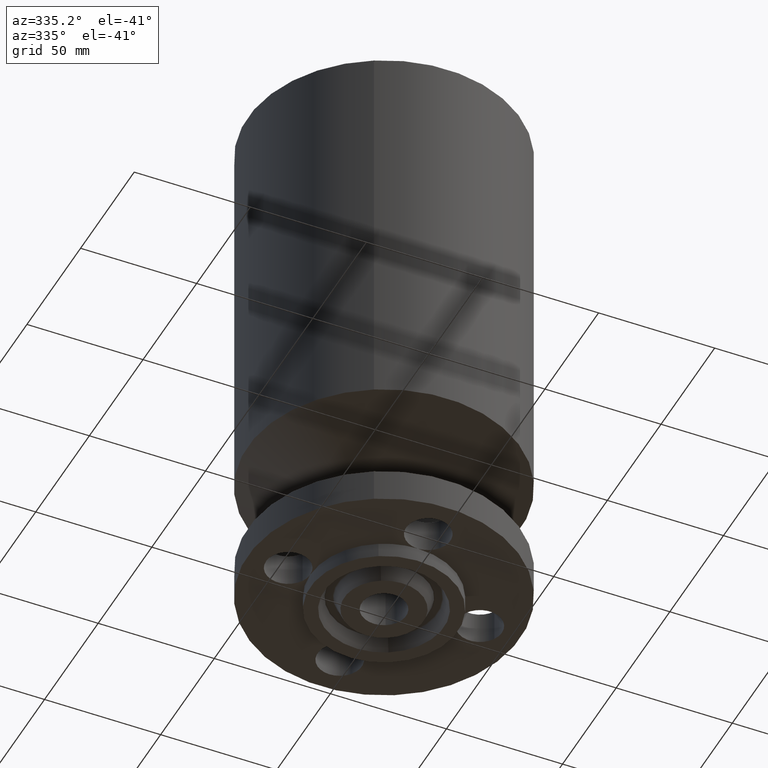
[diagram: clean part render]
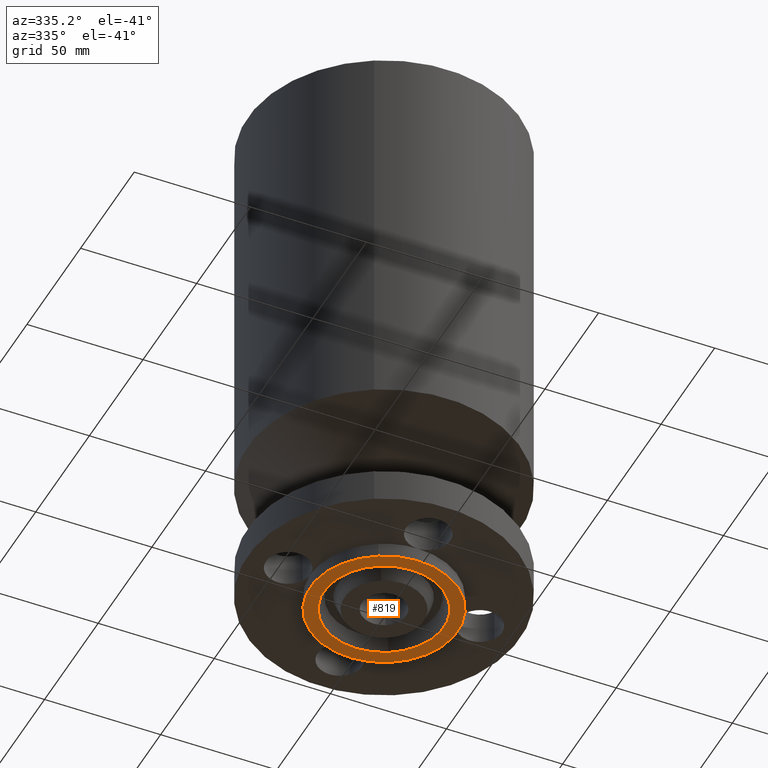
[diagram: same view with one face highlighted and labeled with its STEP entity id]
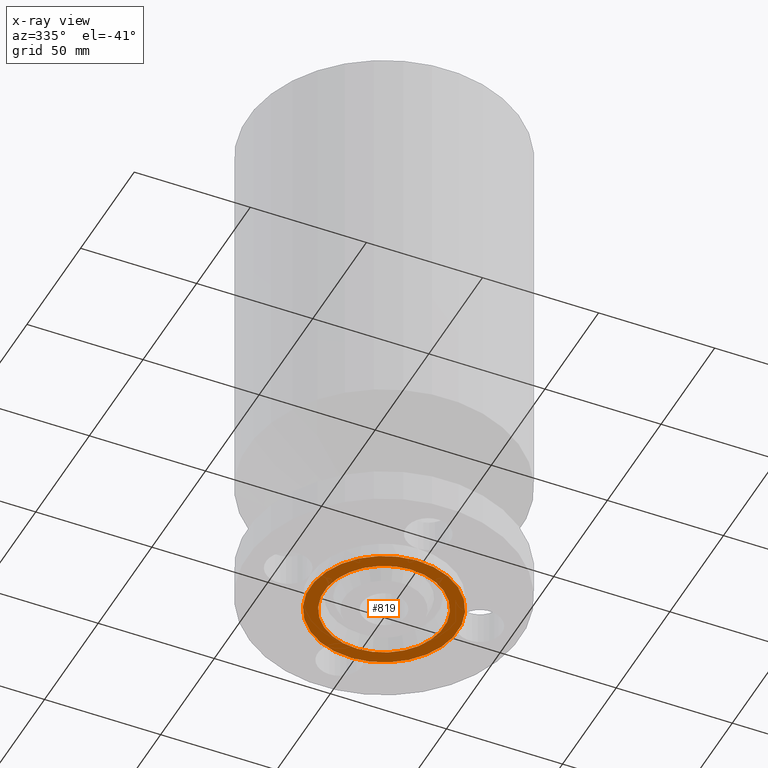
[diagram: x-ray of the same camera — body ghosted, the highlighted face saturated]
A machine part, auxiliary view. The second image highlights one B-rep face of the part: STEP entity #819.
The next image is the same camera in x-ray: the body ghosted, the highlighted face saturated — about 0% of this face is hidden behind the body in this view.
In plain terms, the highlighted planar face has unit normal (0, 0, -1).
Its self-contained STEP definition (entity closure, byte-faithful):
#577=AXIS2_PLACEMENT_3D('Plane Axis2P3D',#574,#575,#576) ;
#768=AXIS2_PLACEMENT_3D('Circle Axis2P3D',#766,#767,$) ;
#787=AXIS2_PLACEMENT_3D('Circle Axis2P3D',#785,#786,$) ;
#799=AXIS2_PLACEMENT_3D('Circle Axis2P3D',#797,#798,$) ;
#808=AXIS2_PLACEMENT_3D('Circle Axis2P3D',#806,#807,$) ;
#574=CARTESIAN_POINT('Axis2P3D Location',(0.,0.375000000001,-0.250000000001)) ;
#763=CARTESIAN_POINT('Vertex',(-0.487096347224,-0.891623882884,-0.250000000001)) ;
#766=CARTESIAN_POINT('Axis2P3D Location',(0.,0.,-0.250000000001)) ;
#770=CARTESIAN_POINT('Vertex',(0.487096347224,0.891623882884,-0.250000000001)) ;
#785=CARTESIAN_POINT('Axis2P3D Location',(0.,0.,-0.250000000001)) ;
#797=CARTESIAN_POINT('Axis2P3D Location',(0.,0.,-0.250000000001)) ;
#801=CARTESIAN_POINT('Vertex',(-0.599281923258,-1.09697820237,-0.250000000001)) ;
#803=CARTESIAN_POINT('Vertex',(0.599281923258,1.09697820237,-0.250000000001)) ;
#806=CARTESIAN_POINT('Axis2P3D Location',(0.,0.,-0.250000000001)) ;
#575=DIRECTION('Axis2P3D Direction',(0.,0.,-0.0393700787402)) ;
#576=DIRECTION('Axis2P3D XDirection',(0.0393700787402,0.,0.)) ;
#767=DIRECTION('Axis2P3D Direction',(0.,0.,-0.0393700787402)) ;
#786=DIRECTION('Axis2P3D Direction',(0.,0.,-0.0393700787402)) ;
#798=DIRECTION('Axis2P3D Direction',(0.,0.,-0.0393700787402)) ;
#807=DIRECTION('Axis2P3D Direction',(0.,0.,-0.0393700787402)) ;
#812=ORIENTED_EDGE('',*,*,#805,.T.) ;
#813=ORIENTED_EDGE('',*,*,#810,.T.) ;
#816=ORIENTED_EDGE('',*,*,#789,.F.) ;
#817=ORIENTED_EDGE('',*,*,#772,.F.) ;
#818=FACE_BOUND('',#815,.T.) ;
#819=ADVANCED_FACE('PartBody',(#814,#818),#578,.T.) ;
#769=CIRCLE('generated circle',#768,1.016) ;
#788=CIRCLE('generated circle',#787,1.016) ;
#800=CIRCLE('generated circle',#799,1.25000000001) ;
#809=CIRCLE('generated circle',#808,1.25000000001) ;
#772=EDGE_CURVE('',#764,#771,#769,.T.) ;
#789=EDGE_CURVE('',#771,#764,#788,.T.) ;
#805=EDGE_CURVE('',#802,#804,#800,.T.) ;
#810=EDGE_CURVE('',#804,#802,#809,.T.) ;
#811=EDGE_LOOP('',(#812,#813)) ;
#815=EDGE_LOOP('',(#816,#817)) ;
#814=FACE_OUTER_BOUND('',#811,.T.) ;
#578=PLANE('',#577) ;
#764=VERTEX_POINT('',#763) ;
#771=VERTEX_POINT('',#770) ;
#802=VERTEX_POINT('',#801) ;
#804=VERTEX_POINT('',#803) ;